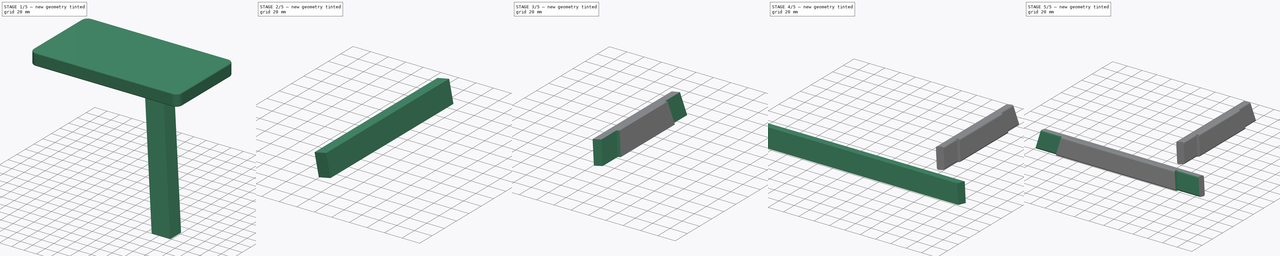
[diagram: build sequence overview — one tinted view per stage of 5, left to right]
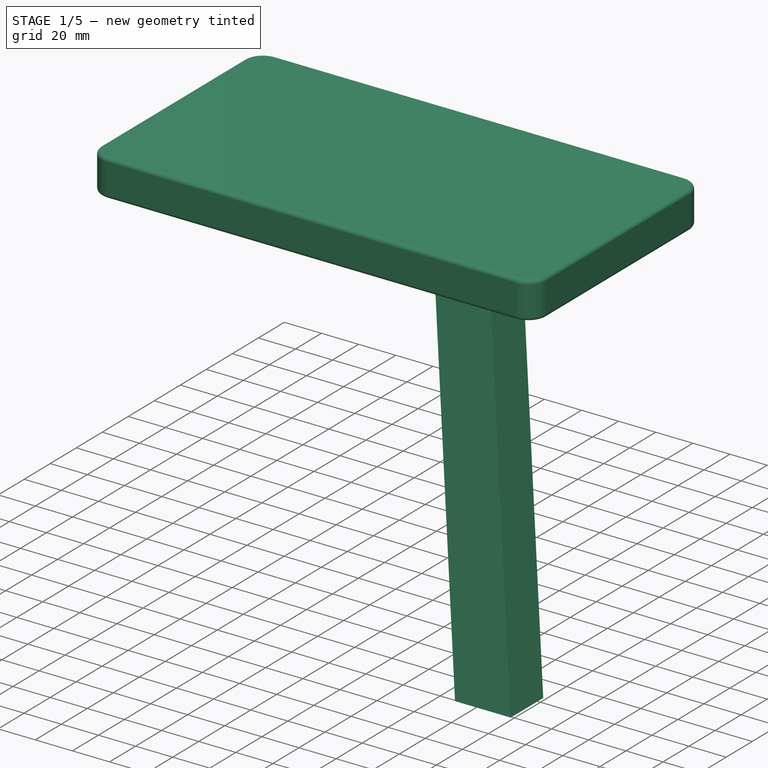
[diagram: stage 1 of 5 — iso view after this stage's code; geometry added in this stage tinted green]
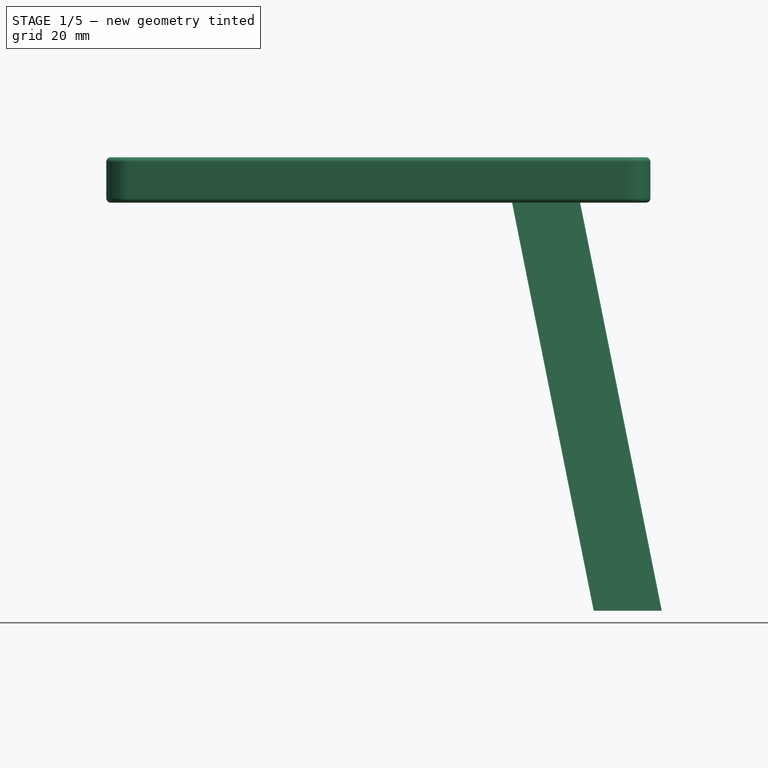
[diagram: stage 1 of 5 — front view after this stage's code; geometry added in this stage tinted green]
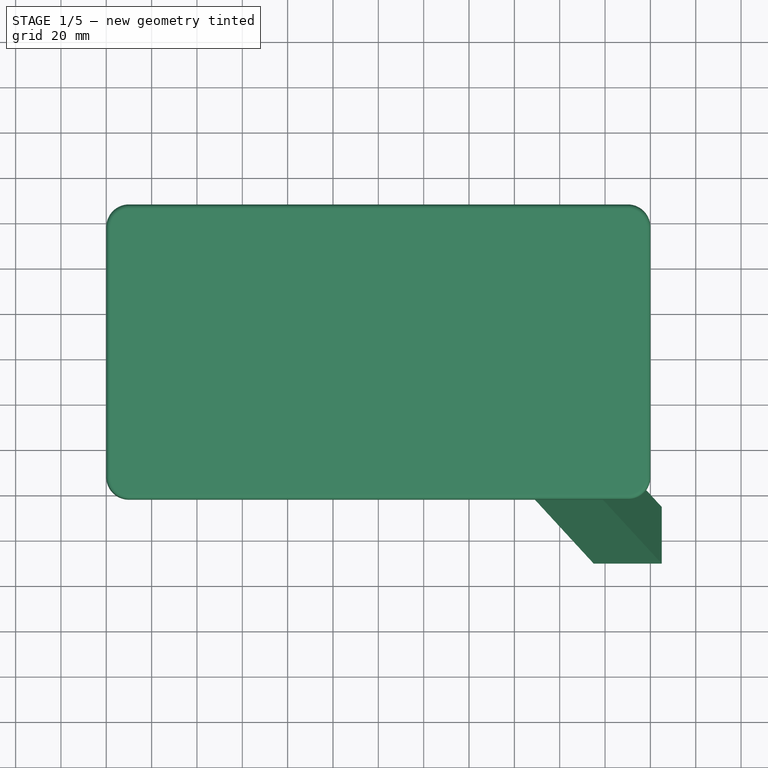
[diagram: stage 1 of 5 — top view after this stage's code; geometry added in this stage tinted green]
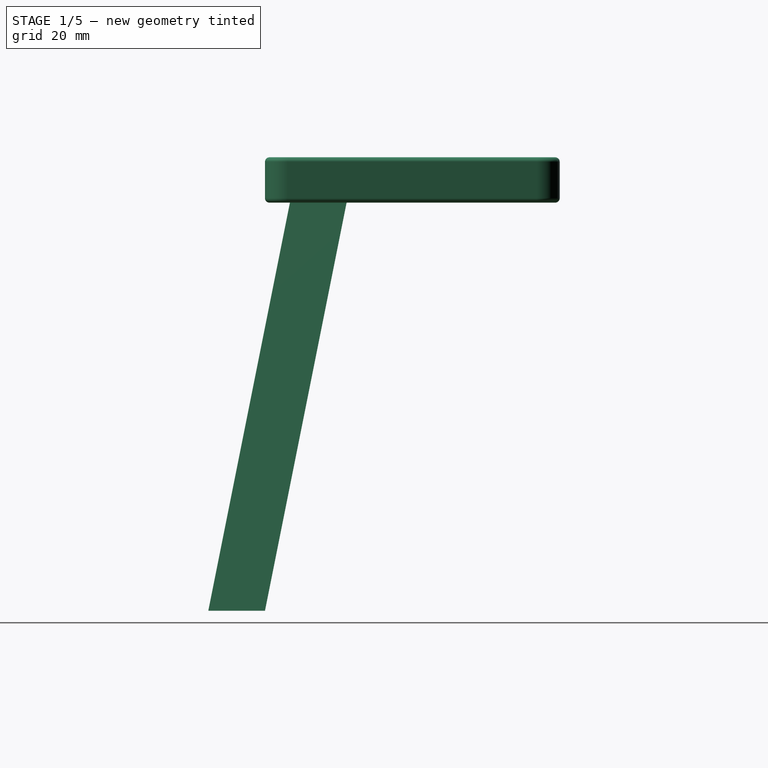
[diagram: stage 1 of 5 — right view after this stage's code; geometry added in this stage tinted green]
FCSTD DOCUMENT  (FreeCAD 1.0R39109 (Git))
Label: chair
License: All rights reserved
LicenseURL: https://en.wikipedia.org/wiki/All_rights_reserved
objects: Sketcher::SketchObject×10, PartDesign::SubShapeBinder×5, PartDesign::Pocket×5, PartDesign::Pad×4, PartDesign::Fillet×4, PartDesign::Body×4, PartDesign::Mirrored×2, PartDesign::Line×1
note: 73 computed .brp shape members not serialized (recipe doc carries the construction recipe); baked Part::Feature solids carry a one-line shape summary decoded from their .brp

FEATURE [Sketcher::SketchObject] Sketch
  ArcFitTolerance = 1e-06
  AttachmentSupport = -> [XY_Plane]
  FullyConstrained = true
  MakeInternals = false
  MapMode = 5
  sketch-geometry (10):
    g0: LineSegment StartX=-120 StartY=55 StartZ=0 EndX=-120 EndY=-55 EndZ=0
    g1: LineSegment StartX=-110 StartY=-65 StartZ=0 EndX=110 EndY=-65 EndZ=0
    g2: LineSegment StartX=120 StartY=-55 StartZ=0 EndX=120 EndY=55 EndZ=0
    g3: LineSegment StartX=110 StartY=65 StartZ=0 EndX=-110 EndY=65 EndZ=0
    g4: ArcOfCircle CenterX=-110 CenterY=55 CenterZ=0 NormalX=0 NormalY=0 NormalZ=1 AngleXU=0 Radius=10 StartAngle=1.5708 EndAngle=3.14159
    g5: ArcOfCircle CenterX=-110 CenterY=-55 CenterZ=0 NormalX=0 NormalY=0 NormalZ=1 AngleXU=0 Radius=10 StartAngle=3.14159 EndAngle=4.71239
    g6: ArcOfCircle CenterX=110 CenterY=-55 CenterZ=0 NormalX=0 NormalY=0 NormalZ=1 AngleXU=0 Radius=10 StartAngle=4.71239 EndAngle=6.28319
    g7: ArcOfCircle CenterX=110 CenterY=55 CenterZ=0 NormalX=0 NormalY=0 NormalZ=1 AngleXU=0 Radius=10 StartAngle=0 EndAngle=1.5708
    g8: GeomPoint [constr] X=-120 Y=65 Z=0
    g9: GeomPoint [constr] X=120 Y=-65 Z=0
  constraints (23):
    c: Tangent(g0,g4) = -1.5708
    c: Tangent(g0,g5) = -1.5708
    c: Tangent(g1,g5) = -1.5708
    c: Tangent(g1,g6) = -1.5708
    c: Tangent(g2,g6) = -1.5708
    c: Tangent(g2,g7) = -1.5708
    c: Tangent(g3,g7) = -1.5708
    c: Tangent(g3,g4) = -1.5708
    c: Vertical(g0)
    c: Vertical(g2)
    c: Horizontal(g1)
    c: Horizontal(g3)
    c: Equal(g4,g5)
    c: Equal(g5,g6)
    c: Equal(g6,g7)
    c: PointOnObject(g8,g0)
    c: PointOnObject(g8,g3)
    c: PointOnObject(g9,g1)
    c: PointOnObject(g9,g2)
    c: Distance(g0,g2) = 240
    c: Distance(g1,g3) = 130
    c: Radius(g5) = 10
    c: Symmetric(g5,g7,g-1)
FEATURE [PartDesign::Pad] Pad
  Direction = (0,0,1)
  Length = 20
  Length2 = 10
  Profile = -> Sketch
  ReferenceAxis = -> Sketch [N_Axis]
  Refine = true
  Reversed = true
  Suppressed = false
  Type = 0
FEATURE [Sketcher::SketchObject] Sketch001
  ArcFitTolerance = 1e-06
  AttachmentSupport = -> [XY_Plane001]
  FullyConstrained = true
  MakeInternals = false
  MapMode = 5
  sketch-geometry (9):
    g0: LineSegment [constr] StartX=-85 StartY=-50 StartZ=0 EndX=85 EndY=-50 EndZ=0
    g1: LineSegment [constr] StartX=85 StartY=-50 StartZ=0 EndX=85 EndY=50 EndZ=0
    g2: LineSegment [constr] StartX=85 StartY=50 StartZ=0 EndX=-85 EndY=50 EndZ=0
    g3: LineSegment [constr] StartX=-85 StartY=50 StartZ=0 EndX=-85 EndY=-50 EndZ=0
    g4: GeomPoint [constr] X=0 Y=0 Z=0
    g5: LineSegment StartX=85 StartY=-50 StartZ=0 EndX=85 EndY=-25 EndZ=0
    g6: LineSegment StartX=85 StartY=-25 StartZ=0 EndX=55 EndY=-25 EndZ=0
    g7: LineSegment StartX=55 StartY=-25 StartZ=0 EndX=55 EndY=-50 EndZ=0
    g8: LineSegment StartX=55 StartY=-50 StartZ=0 EndX=85 EndY=-50 EndZ=0
  constraints (23):
    c: Coincident(g0,g1)
    c: Coincident(g1,g2)
    c: Coincident(g2,g3)
    c: Coincident(g3,g0)
    c: Horizontal(g0)
    c: Horizontal(g2)
    c: Vertical(g1)
    c: Vertical(g3)
    c: Symmetric(g2,g0,g4)
    c: Distance(g1,g3) = 170
    c: Distance(g0,g2) = 100
    c: Coincident(g4,g-1)
    c: Coincident(g5,g6)
    c: Coincident(g6,g7)
    c: Coincident(g7,g8)
    c: Coincident(g8,g5)
    c: Vertical(g5)
    c: Vertical(g7)
    c: Horizontal(g6)
    c: Horizontal(g8)
    c: Distance(g5,g7) = 30
    c: Distance(g6,g8) = 25
    c: Coincident(g5,g0)
FEATURE [Sketcher::SketchObject] Sketch002
  ArcFitTolerance = 1e-06
  AttachmentOffset = pos=(0,0,-200) rot=(0,0,1;0rad)
  AttachmentSupport = -> [XY_Plane001]
  FullyConstrained = true
  MakeInternals = false
  MapMode = 5
  Placement = pos=(0,0,-200) rot=(0,0,1;0rad)
  sketch-geometry (9):
    g0: LineSegment [constr] StartX=-125 StartY=-90 StartZ=0 EndX=125 EndY=-90 EndZ=0
    g1: LineSegment [constr] StartX=125 StartY=-90 StartZ=0 EndX=125 EndY=90 EndZ=0
    g2: LineSegment [constr] StartX=125 StartY=90 StartZ=0 EndX=-125 EndY=90 EndZ=0
    g3: LineSegment [constr] StartX=-125 StartY=90 StartZ=0 EndX=-125 EndY=-90 EndZ=0
    g4: GeomPoint [constr] X=0 Y=0 Z=0
    g5: LineSegment StartX=125 StartY=-90 StartZ=0 EndX=125 EndY=-65 EndZ=0
    g6: LineSegment StartX=125 StartY=-65 StartZ=0 EndX=95 EndY=-65 EndZ=0
    g7: LineSegment StartX=95 StartY=-65 StartZ=0 EndX=95 EndY=-90 EndZ=0
    g8: LineSegment StartX=95 StartY=-90 StartZ=0 EndX=125 EndY=-90 EndZ=0
  constraints (23):
    c: Coincident(g0,g1)
    c: Coincident(g1,g2)
    c: Coincident(g2,g3)
    c: Coincident(g3,g0)
    c: Horizontal(g0)
    c: Horizontal(g2)
    c: Vertical(g1)
    c: Vertical(g3)
    c: Symmetric(g2,g0,g4)
    c: Distance(g1,g3) = 250
    c: Distance(g0,g2) = 180
    c: Coincident(g4,g-1)
    c: Coincident(g5,g6)
    c: Coincident(g6,g7)
    c: Coincident(g7,g8)
    c: Coincident(g8,g5)
    c: Vertical(g5)
    c: Vertical(g7)
    c: Horizontal(g6)
    c: Horizontal(g8)
    c: Distance(g5,g7) = 30
    c: Distance(g6,g8) = 25
    c: Coincident(g5,g0)
FEATURE [PartDesign::Line] DatumLine
  AttacherType = Attacher::AttachEngineLine
  AttachmentSupport = -> [Sketch001,Sketch002]
  Length = 20
  MapMode = 29
  Placement = pos=(80,-45,25) rot=(0.922581,0.382145,0.053004;2.88705rad)
  ResizeMode = 0
FEATURE [PartDesign::Pad] Pad001
  Direction = (0.19245,-0.19245,-0.96225)
  Length = 200
  Length2 = 10
  Profile = -> Sketch001
  ReferenceAxis = -> DatumLine
  Refine = true
  Suppressed = false
  Type = 0
FEATURE [PartDesign::Body] Body003  label="Перекладина короткая"
  AllowCompound = false
  Group = -> [Binder003,Binder004,Sketch007,Pad003,Sketch008,Pocket003,Sketch009,Pocket004,Mirrored001,Fillet001]
  Origin = -> Origin003
  Tip = -> Fillet001
FEATURE [PartDesign::Fillet] Fillet002
  Base = -> Pad [Face9,Face10]
  BaseFeature = -> Pad
  Radius = 2
  Refine = true
  SupportTransform = false
  Suppressed = false
  UseAllEdges = false
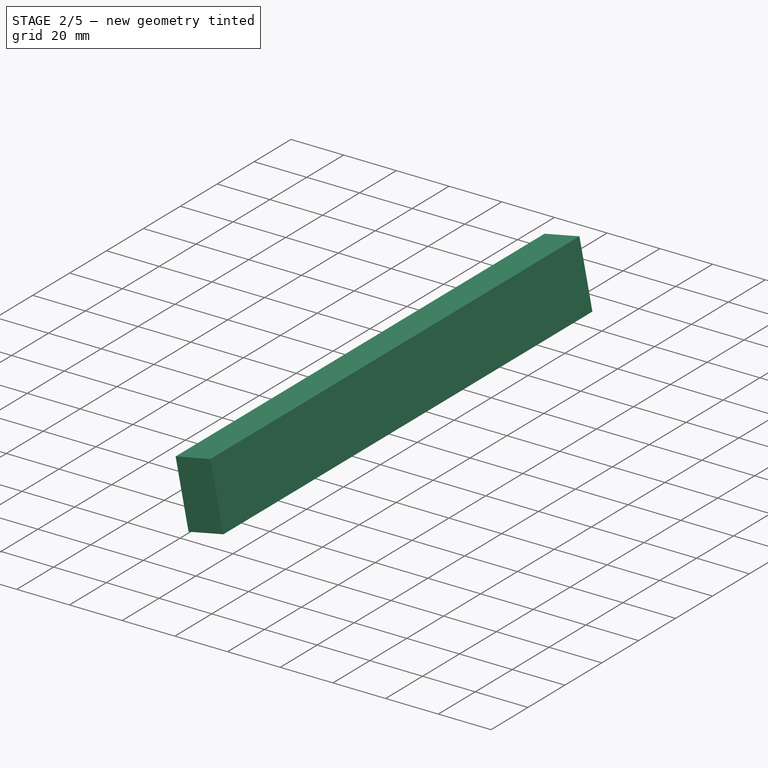
[diagram: stage 2 of 5 — iso view after this stage's code; geometry added in this stage tinted green]
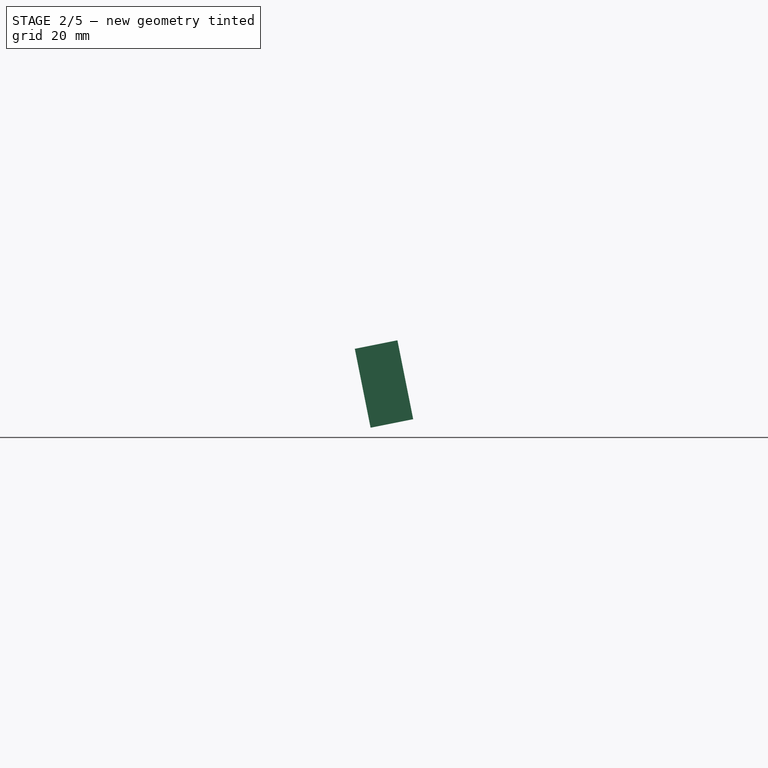
[diagram: stage 2 of 5 — front view after this stage's code; geometry added in this stage tinted green]
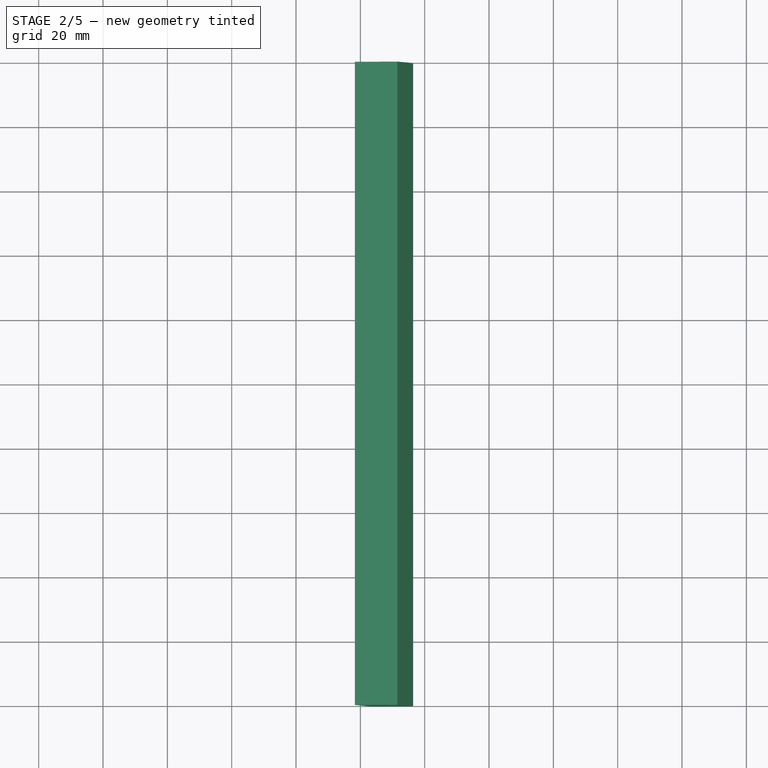
[diagram: stage 2 of 5 — top view after this stage's code; geometry added in this stage tinted green]
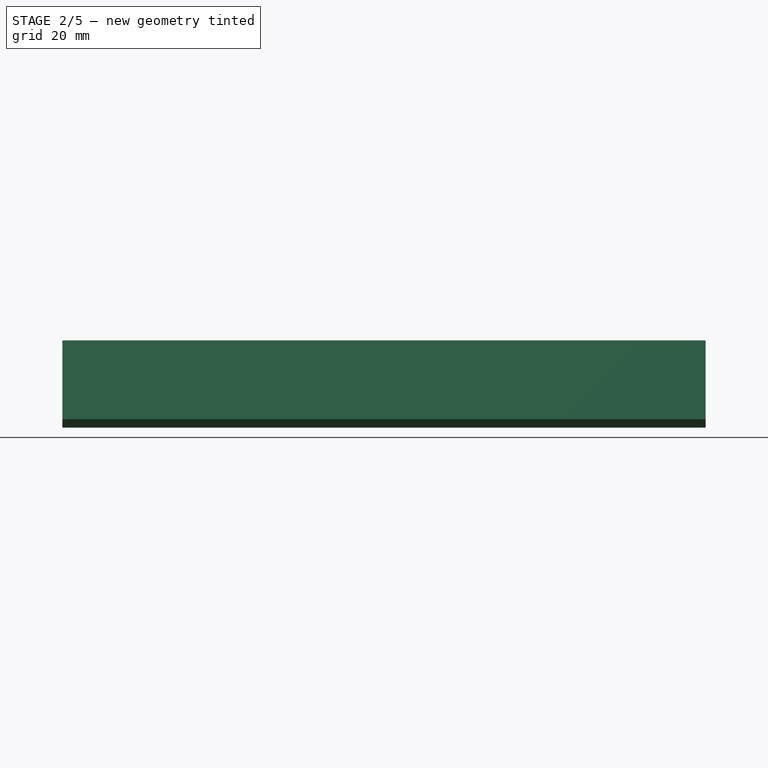
[diagram: stage 2 of 5 — right view after this stage's code; geometry added in this stage tinted green]
FEATURE [PartDesign::SubShapeBinder] Binder
  BindCopyOnChange = 0
  BindMode = 0
  ClaimChildren = false
  Context = -> Body001 [Binder.]
  Fuse = false
  MakeFace = true
  OffsetFill = false
  OffsetIntersection = false
  OffsetJoinType = 0
  OffsetOpenResult = false
  PartialLoad = false
  Refine = true
  Relative = true
  Support = -> [Body[Pad.Face10]]
  _Version = 2
FEATURE [Sketcher::SketchObject] Sketch003
  ArcFitTolerance = 1e-06
  AttachmentSupport = -> [Pad001]
  ExternalGeometry = -> [Pad001]
  FullyConstrained = true
  MakeInternals = false
  MapMode = 5
  sketch-geometry (4):
    g0: LineSegment StartX=55 StartY=-50 StartZ=0 EndX=85 EndY=-50 EndZ=0
    g1: LineSegment StartX=85 StartY=-50 StartZ=0 EndX=85 EndY=-37.5 EndZ=0
    g2: LineSegment StartX=85 StartY=-37.5 StartZ=0 EndX=55 EndY=-37.5 EndZ=0
    g3: LineSegment StartX=55 StartY=-37.5 StartZ=0 EndX=55 EndY=-50 EndZ=0
  constraints (10):
    c: Coincident(g0,g1)
    c: Coincident(g1,g2)
    c: Coincident(g2,g3)
    c: Coincident(g3,g0)
    c: Horizontal(g0)
    c: Horizontal(g2)
    c: Vertical(g1)
    c: Vertical(g3)
    c: Coincident(g0,g-6)
    c: Symmetric(g-4,g-4,g1)
FEATURE [PartDesign::Pocket] Pocket
  BaseFeature = -> Pad001
  Direction = (-0.19245,0.19245,0.96225)
  Length = 0
  Length2 = 5
  Profile = -> Sketch003
  ReferenceAxis = -> Pad001 [Edge1]
  Refine = true
  Suppressed = false
  Type = 3
  UpToFace = -> Binder [Face1]
FEATURE [PartDesign::Body] Body002  label="Перекладина длинная"
  AllowCompound = false
  Group = -> [Binder001,Binder002,Sketch004,Pad002,Sketch005,Pocket001,Sketch006,Pocket002,Mirrored,Fillet]
  Origin = -> Origin002
  Tip = -> Fillet
FEATURE [PartDesign::SubShapeBinder] Binder003
  BindCopyOnChange = 0
  BindMode = 0
  ClaimChildren = false
  Context = -> Body003 [Binder003.]
  Fuse = false
  MakeFace = true
  OffsetFill = false
  OffsetIntersection = false
  OffsetJoinType = 0
  OffsetOpenResult = false
  PartialLoad = false
  Refine = true
  Relative = true
  Support = -> [Body001[Pocket.Face7]]
  _Version = 2
FEATURE [PartDesign::SubShapeBinder] Binder004
  BindCopyOnChange = 0
  BindMode = 0
  ClaimChildren = false
  Context = -> Body003 [Binder004.]
  Fuse = false
  MakeFace = true
  OffsetFill = false
  OffsetIntersection = false
  OffsetJoinType = 0
  OffsetOpenResult = false
  PartialLoad = false
  Refine = true
  Relative = true
  Support = -> [Body001[Pocket.Face5]]
  _Version = 2
FEATURE [Sketcher::SketchObject] Sketch007
  ArcFitTolerance = 1e-06
  AttachmentSupport = -> [XZ_Plane003]
  ExternalGeometry = -> [Binder004]
  FullyConstrained = true
  MakeInternals = false
  MapMode = 5
  Placement = pos=(0,0,0) rot=(1,0,0;1.5708rad)
  sketch-geometry (8):
    g0: LineSegment StartX=91.5161 StartY=-73.1619 StartZ=0 EndX=78.2782 EndY=-75.8095 EndZ=0
    g1: LineSegment StartX=78.2782 StartY=-75.8095 StartZ=0 EndX=83.1811 EndY=-100.324 EndZ=0
    g2: LineSegment StartX=83.1811 StartY=-100.324 StartZ=0 EndX=96.419 EndY=-97.6764 EndZ=0
    g3: LineSegment StartX=96.419 StartY=-97.6764 StartZ=0 EndX=91.5161 EndY=-73.1619 EndZ=0
    g4: LineSegment [constr] StartX=93.9675 StartY=-85.4191 StartZ=0 EndX=80.7297 EndY=-88.0667 EndZ=0
    g5: GeomPoint [constr] X=87.3486 Y=-86.7429 Z=0
    g6: GeomPoint [constr] X=110 Y=-200 Z=0
    g7: LineSegment [constr] StartX=101.772 StartY=-83.8583 StartZ=0 EndX=72.9255 EndY=-89.6275 EndZ=0
  constraints (19):
    c: Coincident(g0,g1)
    c: Coincident(g1,g2)
    c: Coincident(g2,g3)
    c: Coincident(g3,g0)
    c: Parallel(g0,g2)
    c: Parallel(g1,g3)
    c: Parallel(g1,g-3)
    c: Perpendicular(g3,g0)
    c: Distance(g0,g0) = 13.5
    c: Distance(g3,g3) = 25
    c: Symmetric(g3,g3,g4)
    c: Symmetric(g1,g1,g4)
    c: Symmetric(g4,g4,g5)
    c: Symmetric(g-5,g-5,g6)
    c: Distance(g6,g4) = 115.5
    c: PointOnObject(g7,g-3)
    c: PointOnObject(g7,g-4)
    c: Parallel(g7,g4)
    c: Symmetric(g7,g7,g5)
FEATURE [PartDesign::Pad] Pad003
  Direction = (0,-1,2e-16)
  Length = 200
  Length2 = 10
  Midplane = true
  Placement = pos=(0,0,0) rot=(1,0,0;1.5708rad)
  Profile = -> Sketch007
  ReferenceAxis = -> Sketch007 [N_Axis]
  Refine = true
  Suppressed = false
  Type = 0
FEATURE [PartDesign::Body] Body  label="Сиденья"
  AllowCompound = false
  Group = -> [Sketch,Pad,Fillet002]
  Origin = -> Origin
  Tip = -> Fillet002
FEATURE [PartDesign::Fillet] Fillet003
  Base = -> Pocket [Edge11,Edge2,Edge4,Edge6,Edge18,Edge14]
  BaseFeature = -> Pocket
  Radius = 2
  Refine = true
  SupportTransform = false
  Suppressed = false
  UseAllEdges = false
FEATURE [PartDesign::Body] Body001  label="Ножка"
  AllowCompound = false
  Group = -> [Sketch001,Sketch002,DatumLine,Pad001,Binder,Sketch003,Pocket,Fillet003]
  Origin = -> Origin001
  Tip = -> Fillet003
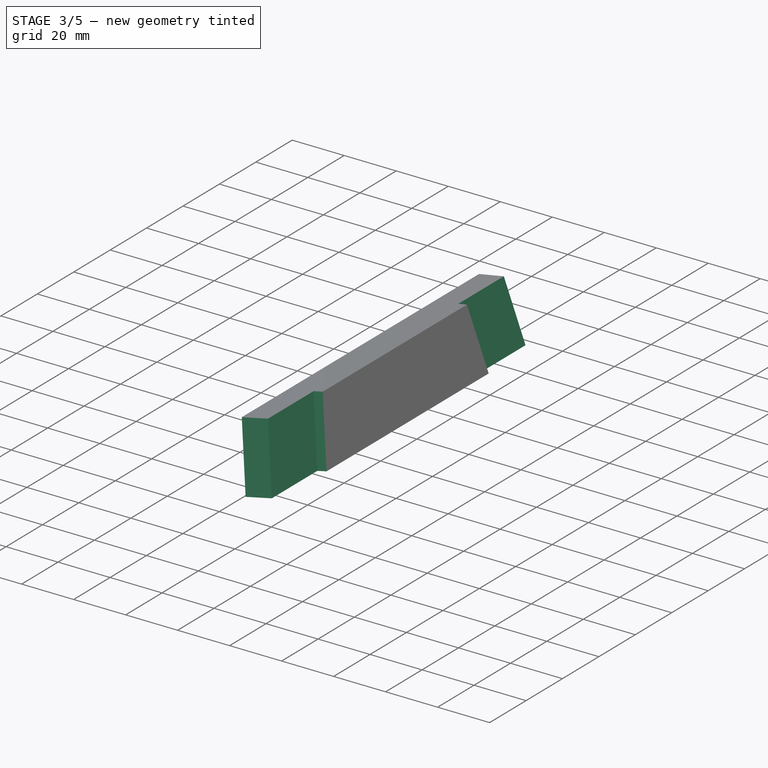
[diagram: stage 3 of 5 — iso view after this stage's code; geometry added in this stage tinted green]
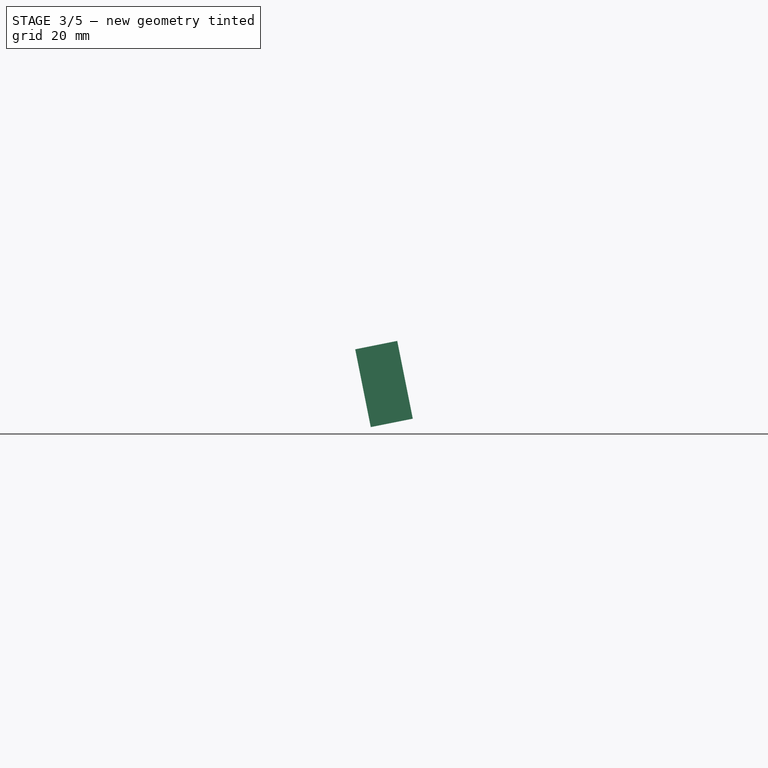
[diagram: stage 3 of 5 — front view after this stage's code; geometry added in this stage tinted green]
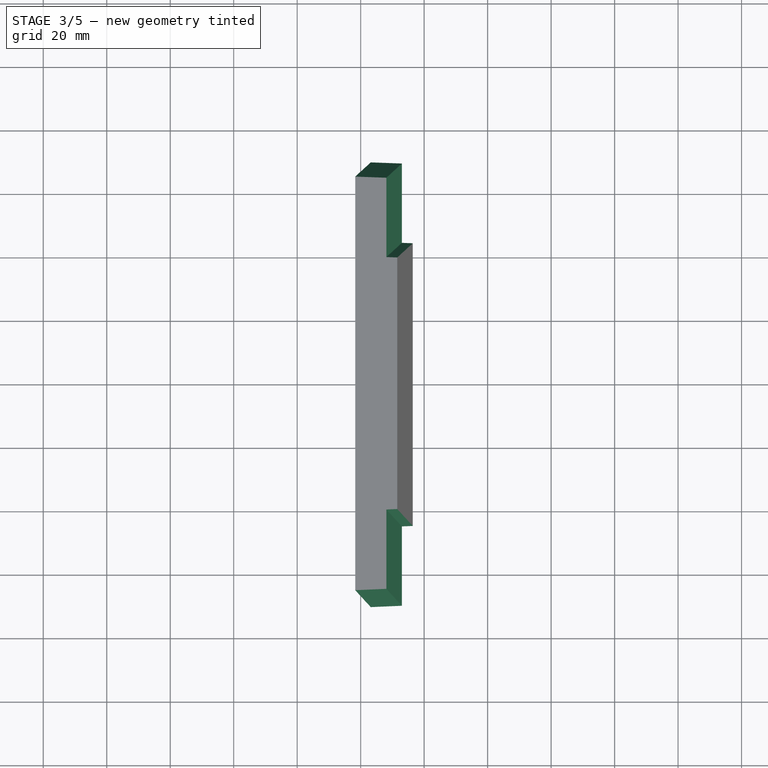
[diagram: stage 3 of 5 — top view after this stage's code; geometry added in this stage tinted green]
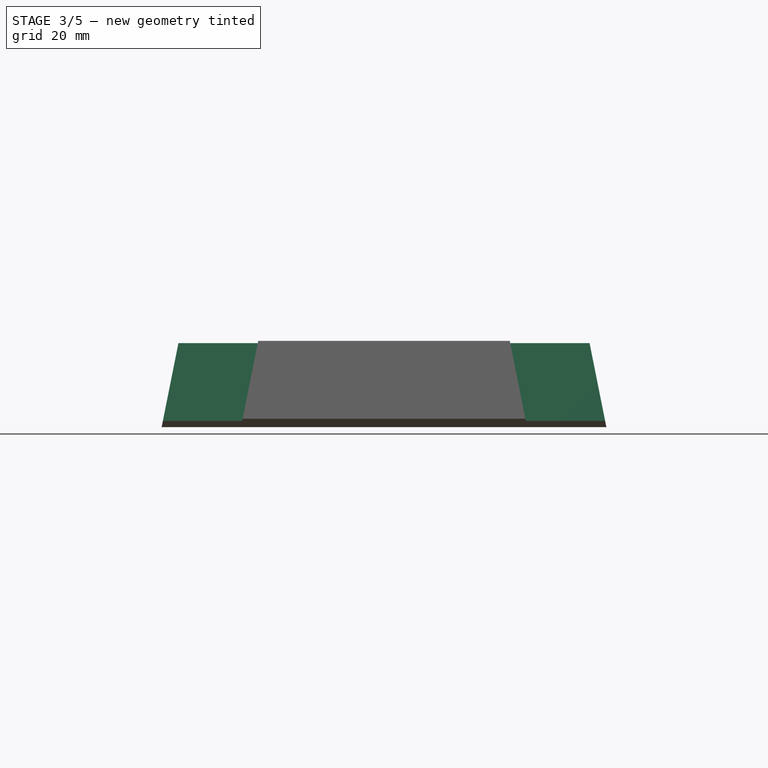
[diagram: stage 3 of 5 — right view after this stage's code; geometry added in this stage tinted green]
FEATURE [Sketcher::SketchObject] Sketch008
  ArcFitTolerance = 1e-06
  AttachmentSupport = -> [Binder003]
  FullyConstrained = false
  MakeInternals = false
  MapMode = 5
  Placement = pos=(0,-48.0769,9.61538) rot=(1,0,0;1.3734rad)
  sketch-geometry (4):
    g0: LineSegment StartX=49.8027 StartY=-77.8352 StartZ=0 EndX=49.8027 EndY=-139.123 EndZ=0
    g1: LineSegment StartX=49.8027 StartY=-139.123 StartZ=0 EndX=137.138 EndY=-139.123 EndZ=0
    g2: LineSegment StartX=137.138 StartY=-139.123 StartZ=0 EndX=137.138 EndY=-77.8352 EndZ=0
    g3: LineSegment StartX=137.138 StartY=-77.8352 StartZ=0 EndX=49.8027 EndY=-77.8352 EndZ=0
  constraints (8):
    c: Coincident(g0,g1)
    c: Coincident(g1,g2)
    c: Coincident(g2,g3)
    c: Coincident(g3,g0)
    c: Vertical(g0)
    c: Vertical(g2)
    c: Horizontal(g1)
    c: Horizontal(g3)
FEATURE [PartDesign::Pocket] Pocket003
  BaseFeature = -> Pad003
  Direction = (0,0.980581,-0.196116)
  Length = 5
  Length2 = 5
  Placement = pos=(0,0,0) rot=(1,0,0;1.5708rad)
  Profile = -> Sketch008
  ReferenceAxis = -> Sketch008 [N_Axis]
  Refine = true
  Reversed = true
  Suppressed = false
  Type = 1
FEATURE [Sketcher::SketchObject] Sketch009
  ArcFitTolerance = 1e-06
  AttachmentSupport = -> [Pocket003]
  ExternalGeometry = -> [Pocket003]
  FullyConstrained = true
  MakeInternals = false
  MapMode = 5
  Placement = pos=(0,-48.0769,9.61538) rot=(1,0,0;1.3734rad)
  sketch-geometry (4):
    g0: LineSegment StartX=96.419 StartY=-109.417 StartZ=0 EndX=91.5161 EndY=-84.4166 EndZ=0
    g1: LineSegment StartX=91.5161 StartY=-84.4166 StartZ=0 EndX=88.0867 EndY=-85.116 EndZ=0
    g2: LineSegment StartX=88.0867 StartY=-85.116 StartZ=0 EndX=92.9896 EndY=-110.116 EndZ=0
    g3: LineSegment StartX=92.9896 StartY=-110.116 StartZ=0 EndX=96.419 EndY=-109.417 EndZ=0
  constraints (10):
    c: Coincident(g0,g1)
    c: Coincident(g1,g2)
    c: Coincident(g2,g3)
    c: Coincident(g3,g0)
    c: Parallel(g0,g2)
    c: Parallel(g1,g3)
    c: Distance(g0,g2) = 3.5
    c: Coincident(g0,g-5)
    c: Coincident(g1,g-4)
    c: PointOnObject(g2,g-3)
FEATURE [PartDesign::Pocket] Pocket004
  BaseFeature = -> Pocket003
  Direction = (0,1,-2e-16)
  Length = 0
  Length2 = 5
  Placement = pos=(0,0,0) rot=(1,0,0;1.5708rad)
  Profile = -> Sketch009
  ReferenceAxis = -> Pocket003 [Edge12]
  Refine = true
  Suppressed = false
  Type = 3
  UpToFace = -> Binder004 [Face1]
FEATURE [PartDesign::Mirrored] Mirrored001
  BaseFeature = -> Pocket004
  MirrorPlane = -> XZ_Plane003
  Originals = -> [Pocket004,Pocket003]
  Placement = pos=(0,0,0) rot=(1,0,0;1.5708rad)
  Refine = true
  Suppressed = false
  TransformMode = 0
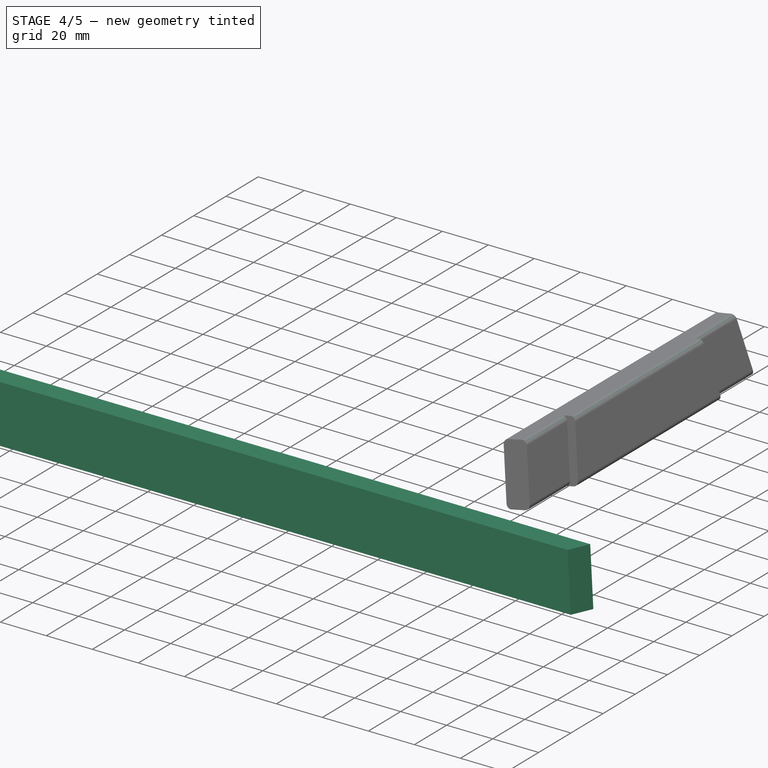
[diagram: stage 4 of 5 — iso view after this stage's code; geometry added in this stage tinted green]
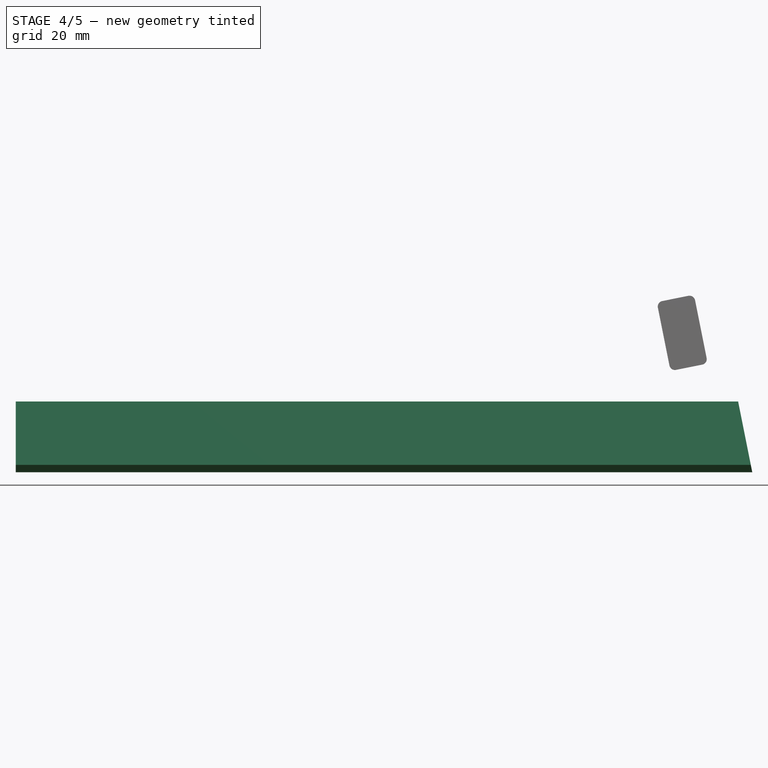
[diagram: stage 4 of 5 — front view after this stage's code; geometry added in this stage tinted green]
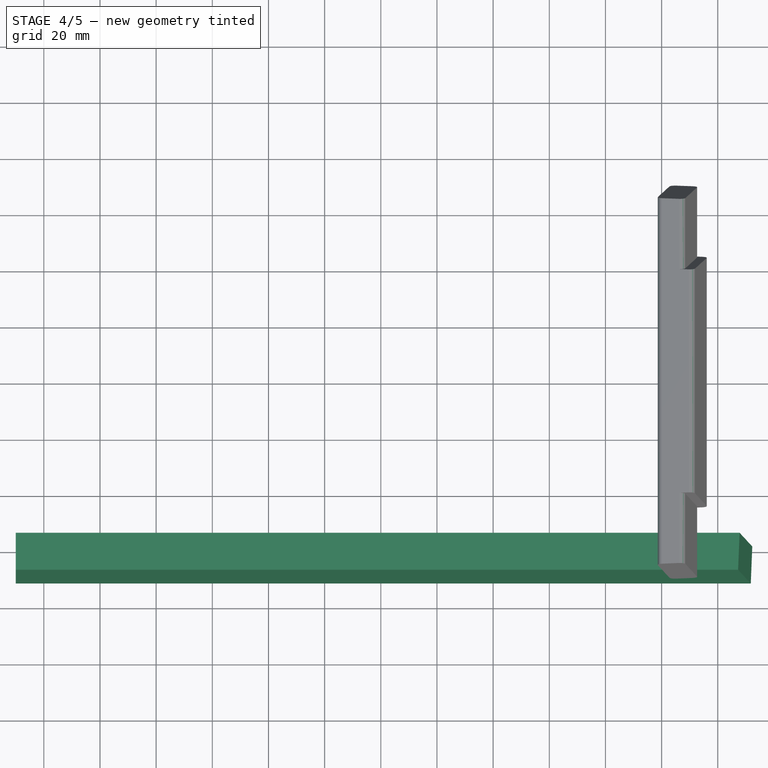
[diagram: stage 4 of 5 — top view after this stage's code; geometry added in this stage tinted green]
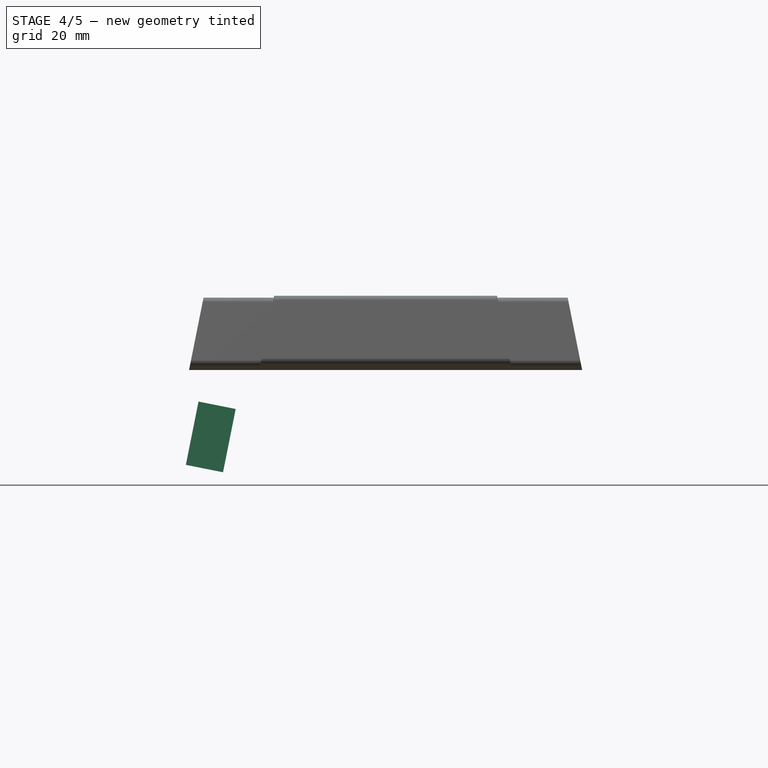
[diagram: stage 4 of 5 — right view after this stage's code; geometry added in this stage tinted green]
FEATURE [PartDesign::SubShapeBinder] Binder001
  BindCopyOnChange = 0
  BindMode = 0
  ClaimChildren = false
  Context = -> Body002 [Binder001.]
  Fuse = false
  MakeFace = true
  OffsetFill = false
  OffsetIntersection = false
  OffsetJoinType = 0
  OffsetOpenResult = false
  PartialLoad = false
  Refine = true
  Relative = true
  Support = -> [Body001[Pocket.Face1]]
  _Version = 2
FEATURE [PartDesign::SubShapeBinder] Binder002
  BindCopyOnChange = 0
  BindMode = 0
  ClaimChildren = false
  Context = -> Body002 [Binder002.]
  Fuse = false
  MakeFace = true
  OffsetFill = false
  OffsetIntersection = false
  OffsetJoinType = 0
  OffsetOpenResult = false
  PartialLoad = false
  Refine = true
  Relative = true
  Support = -> [Body001[Pocket.Face8]]
  _Version = 2
FEATURE [Sketcher::SketchObject] Sketch004
  ArcFitTolerance = 1e-06
  AttachmentSupport = -> [YZ_Plane002]
  ExternalGeometry = -> [Binder002]
  FullyConstrained = true
  MakeInternals = false
  MapMode = 5
  Placement = pos=(0,0,0) rot=(0.57735,0.57735,0.57735;2.0944rad)
  sketch-geometry (8):
    g0: LineSegment StartX=-53.3861 StartY=-113.849 StartZ=0 EndX=-66.6239 EndY=-111.201 EndZ=0
    g1: LineSegment StartX=-66.6239 StartY=-111.201 StartZ=0 EndX=-71.1346 EndY=-133.755 EndZ=0
    g2: LineSegment StartX=-71.1346 StartY=-133.755 StartZ=0 EndX=-57.8967 EndY=-136.402 EndZ=0
    g3: LineSegment StartX=-57.8967 StartY=-136.402 StartZ=0 EndX=-53.3861 EndY=-113.849 EndZ=0
    g4: LineSegment [constr] StartX=-68.8792 StartY=-122.478 StartZ=0 EndX=-55.6414 EndY=-125.125 EndZ=0
    g5: GeomPoint [constr] X=-62.2603 Y=-123.802 Z=0
    g6: GeomPoint [constr] X=-77.5 Y=-200 Z=0
    g7: LineSegment [constr] StartX=-50.2411 StartY=-126.205 StartZ=0 EndX=-74.2796 EndY=-121.398 EndZ=0
  constraints (19):
    c: Coincident(g0,g1)
    c: Coincident(g1,g2)
    c: Coincident(g2,g3)
    c: Coincident(g3,g0)
    c: Parallel(g0,g2)
    c: Parallel(g1,g3)
    c: Parallel(g1,g-3)
    c: Perpendicular(g1,g0)
    c: Symmetric(g1,g1,g4)
    c: Symmetric(g3,g3,g4)
    c: Distance(g0,g1) = 23
    c: Distance(g2,g1) = 13.5
    c: Symmetric(g4,g4,g5)
    c: Symmetric(g-4,g-4,g6)
    c: Distance(g6,g4) = 78
    c: PointOnObject(g7,g-5)
    c: PointOnObject(g7,g-3)
    c: Parallel(g7,g4)
    c: Symmetric(g7,g7,g5)
FEATURE [PartDesign::Pad] Pad002
  Direction = (1,0,0)
  Length = 300
  Length2 = 10
  Midplane = true
  Placement = pos=(0,0,0) rot=(1,1,1;2.0944rad)
  Profile = -> Sketch004
  ReferenceAxis = -> Sketch004 [N_Axis]
  Refine = true
  Suppressed = false
  Type = 0
FEATURE [Sketcher::SketchObject] Sketch005
  ArcFitTolerance = 1e-06
  AttachmentSupport = -> [Binder001]
  FullyConstrained = false
  MakeInternals = false
  MapMode = 5
  Placement = pos=(81.7308,0,16.3462) rot=(0.535447,0.535447,0.653141;1.98443rad)
  sketch-geometry (4):
    g0: LineSegment StartX=-81.0629 StartY=-126.922 StartZ=0 EndX=-81.0629 EndY=-172.61 EndZ=0
    g1: LineSegment StartX=-81.0629 StartY=-172.61 StartZ=0 EndX=-39.299 EndY=-172.61 EndZ=0
    g2: LineSegment StartX=-39.299 StartY=-172.61 StartZ=0 EndX=-39.299 EndY=-126.922 EndZ=0
    g3: LineSegment StartX=-39.299 StartY=-126.922 StartZ=0 EndX=-81.0629 EndY=-126.922 EndZ=0
  constraints (8):
    c: Coincident(g0,g1)
    c: Coincident(g1,g2)
    c: Coincident(g2,g3)
    c: Coincident(g3,g0)
    c: Vertical(g0)
    c: Vertical(g2)
    c: Horizontal(g1)
    c: Horizontal(g3)
FEATURE [PartDesign::Pocket] Pocket001
  BaseFeature = -> Pad002
  Direction = (-0.980581,-1e-16,-0.196116)
  Length = 5
  Length2 = 5
  Placement = pos=(0,0,0) rot=(1,1,1;2.0944rad)
  Profile = -> Sketch005
  ReferenceAxis = -> Sketch005 [N_Axis]
  Refine = true
  Reversed = true
  Suppressed = false
  Type = 1
FEATURE [PartDesign::Fillet] Fillet001
  Base = -> Mirrored001 [Edge1,Edge5,Edge7,Edge3,Edge14,Edge19,Edge23,Edge10]
  BaseFeature = -> Mirrored001
  Placement = pos=(0,0,0) rot=(1,0,0;1.5708rad)
  Radius = 2
  Refine = true
  SupportTransform = false
  Suppressed = false
  UseAllEdges = false
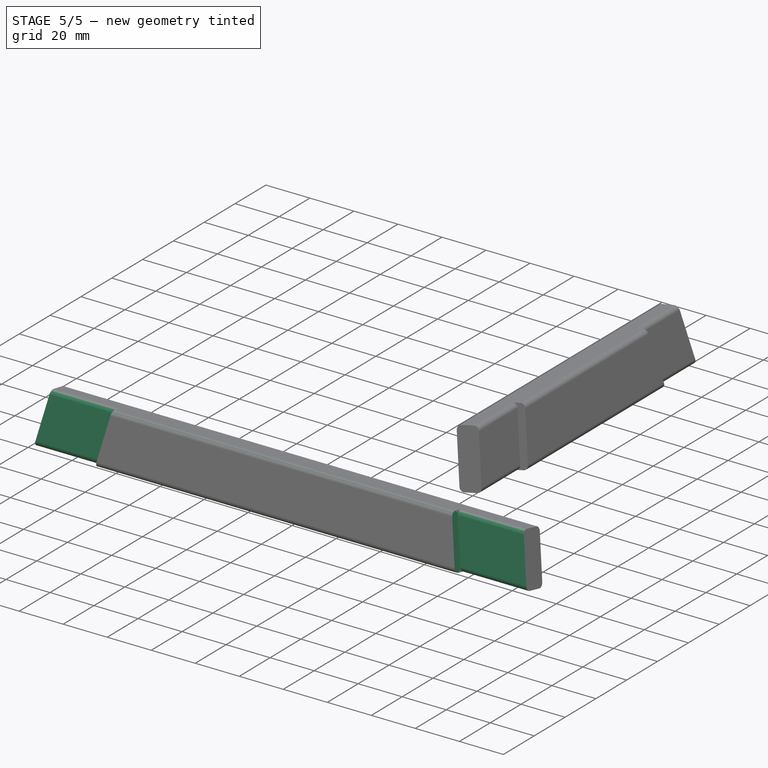
[diagram: stage 5 of 5 — iso view after this stage's code; geometry added in this stage tinted green]
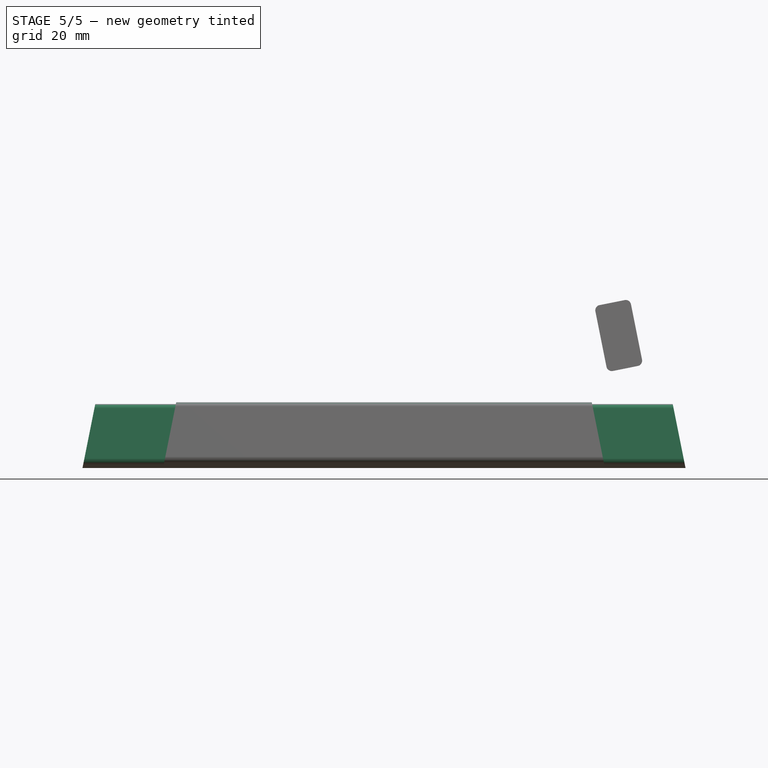
[diagram: stage 5 of 5 — front view after this stage's code; geometry added in this stage tinted green]
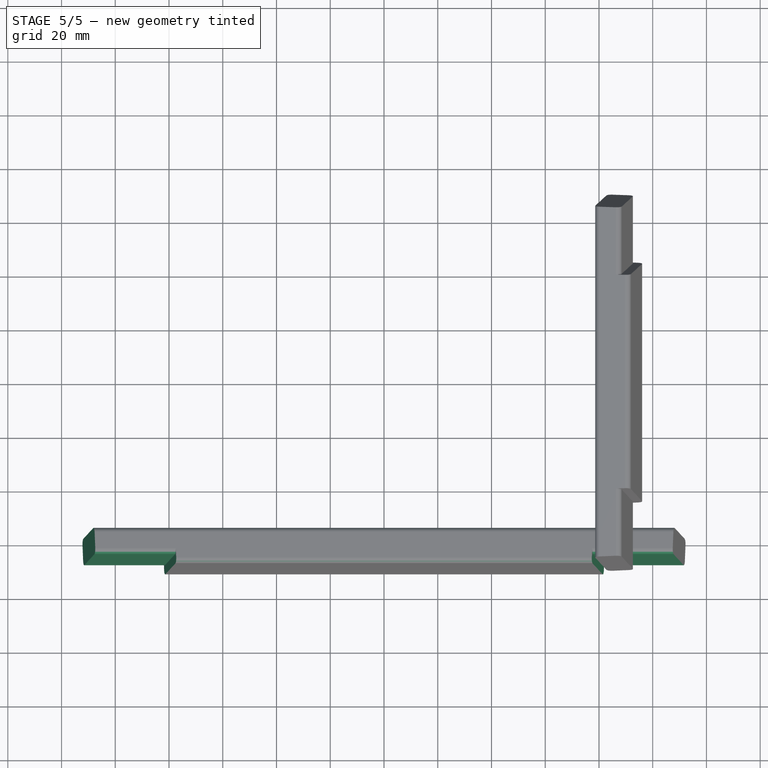
[diagram: stage 5 of 5 — top view after this stage's code; geometry added in this stage tinted green]
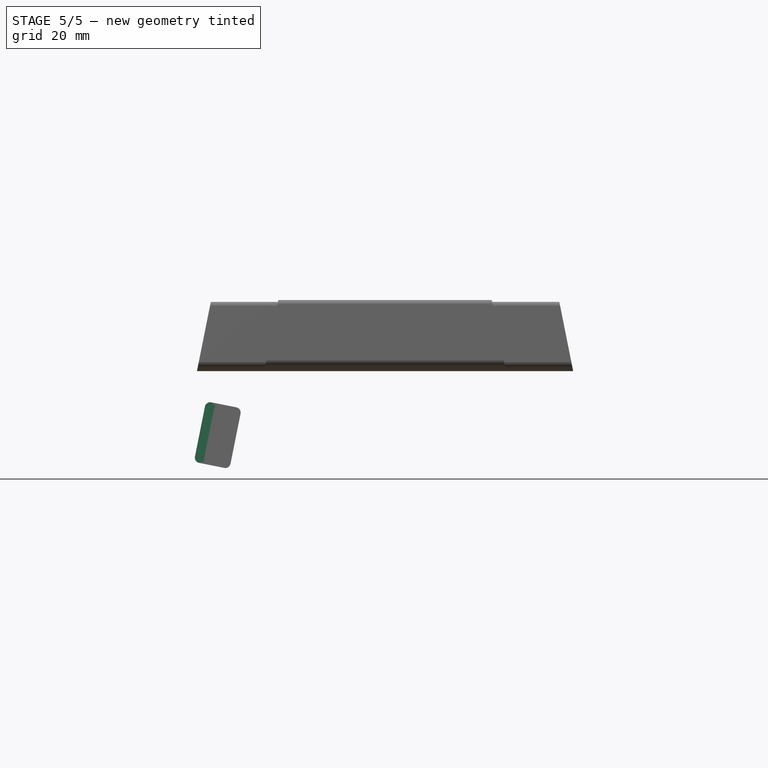
[diagram: stage 5 of 5 — right view after this stage's code; geometry added in this stage tinted green]
FEATURE [Sketcher::SketchObject] Sketch006
  ArcFitTolerance = 1e-06
  AttachmentSupport = -> [Pocket001]
  ExternalGeometry = -> [Pocket001]
  FullyConstrained = true
  MakeInternals = false
  MapMode = 5
  Placement = pos=(81.7308,-1.8e-15,16.3462) rot=(0.535447,0.535447,0.653141;1.98443rad)
  sketch-geometry (4):
    g0: LineSegment StartX=-66.6239 StartY=-130.073 StartZ=0 EndX=-71.1346 EndY=-153.073 EndZ=0
    g1: LineSegment StartX=-71.1346 StartY=-153.073 StartZ=0 EndX=-67.7052 EndY=-153.773 EndZ=0
    g2: LineSegment StartX=-67.7052 StartY=-153.773 StartZ=0 EndX=-63.1945 EndY=-130.773 EndZ=0
    g3: LineSegment StartX=-63.1945 StartY=-130.773 StartZ=0 EndX=-66.6239 EndY=-130.073 EndZ=0
  constraints (10):
    c: Coincident(g0,g1)
    c: Coincident(g1,g2)
    c: Coincident(g2,g3)
    c: Coincident(g3,g0)
    c: Parallel(g0,g2)
    c: Parallel(g1,g3)
    c: Distance(g1,g1) = 3.5
    c: Coincident(g0,g-5)
    c: PointOnObject(g1,g-5)
    c: Coincident(g0,g-4)
FEATURE [PartDesign::Pocket] Pocket002
  BaseFeature = -> Pocket001
  Direction = (-1,4e-16,-2e-16)
  Length = 0
  Length2 = 5
  Placement = pos=(0,0,0) rot=(1,1,1;2.0944rad)
  Profile = -> Sketch006
  ReferenceAxis = -> Pocket001 [Edge8]
  Refine = true
  Suppressed = false
  Type = 3
  UpToFace = -> Binder002 [Face1]
FEATURE [PartDesign::Mirrored] Mirrored
  BaseFeature = -> Pocket002
  MirrorPlane = -> YZ_Plane002
  Originals = -> [Pocket002,Pocket001]
  Placement = pos=(0,0,0) rot=(1,1,1;2.0944rad)
  Refine = true
  Suppressed = false
  TransformMode = 0
FEATURE [PartDesign::Fillet] Fillet
  Base = -> Mirrored [Edge4,Edge16,Edge6,Edge21,Edge8,Edge2,Edge13,Edge24]
  BaseFeature = -> Mirrored
  Placement = pos=(0,0,0) rot=(1,1,1;2.0944rad)
  Radius = 2
  Refine = true
  SupportTransform = false
  Suppressed = false
  UseAllEdges = false
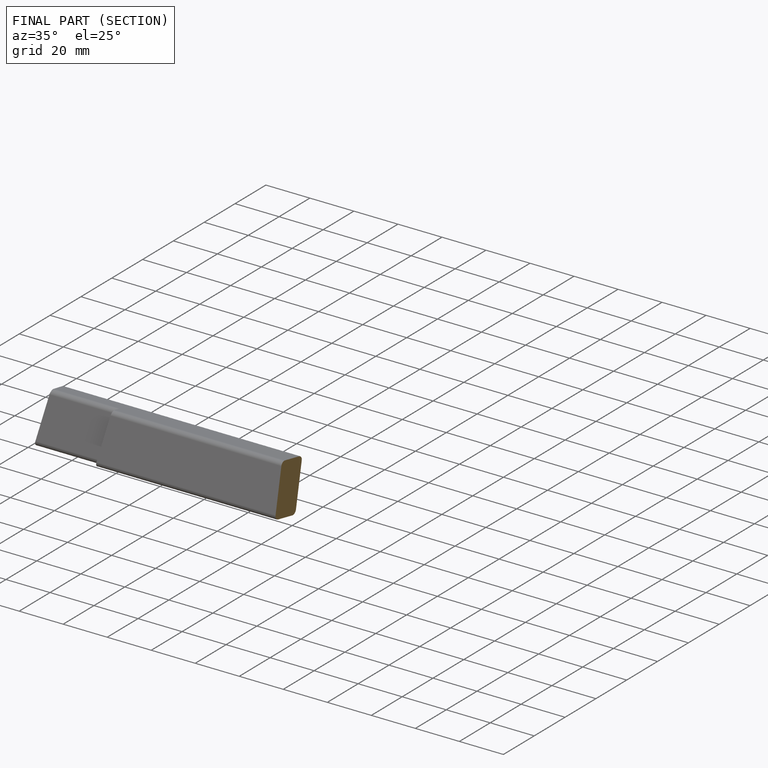
[diagram: finished part — half-section view (interior)]
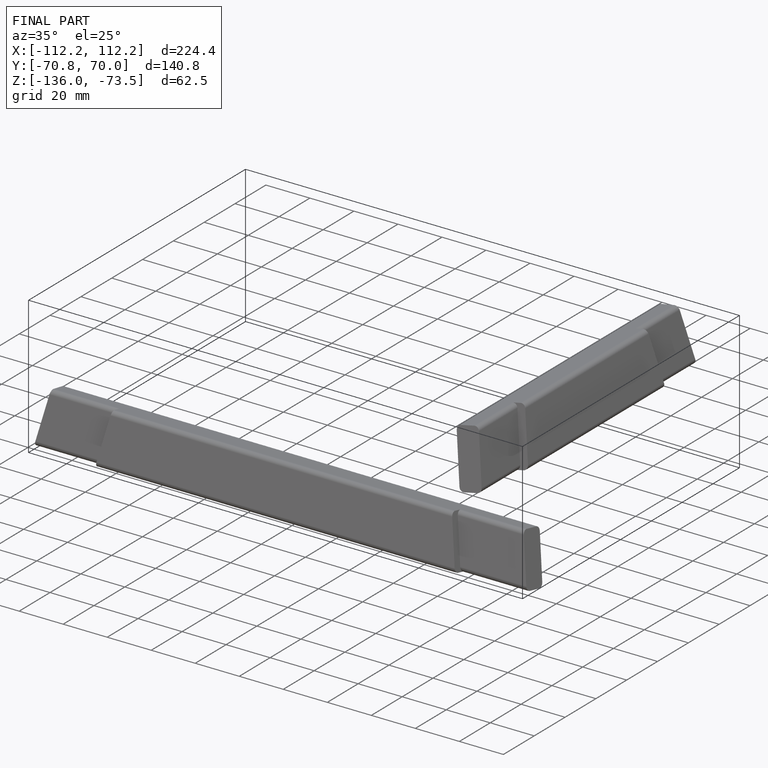
[diagram: finished part — iso view with bounding-box wireframe]
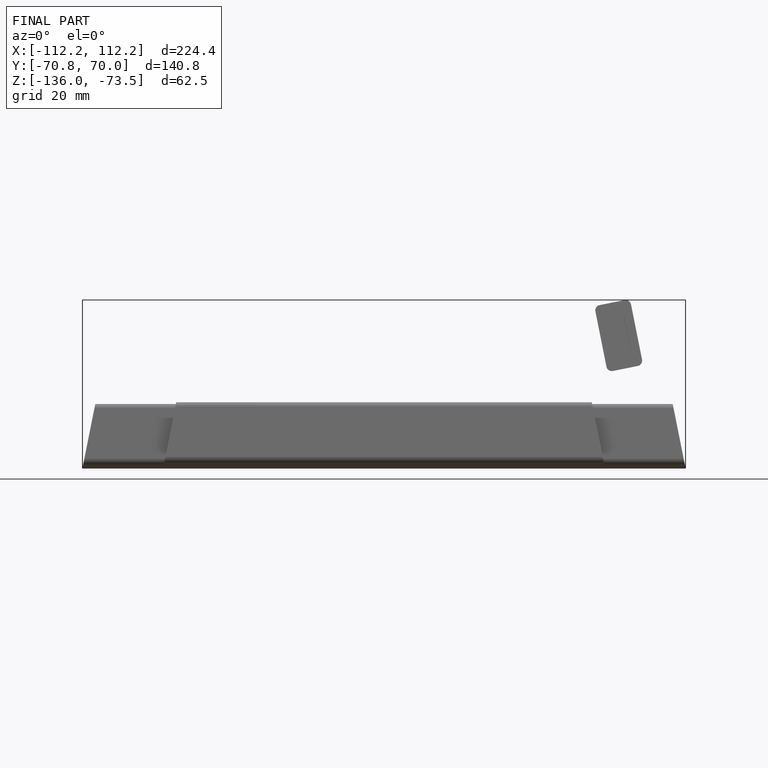
[diagram: finished part — front view with bounding-box wireframe]
